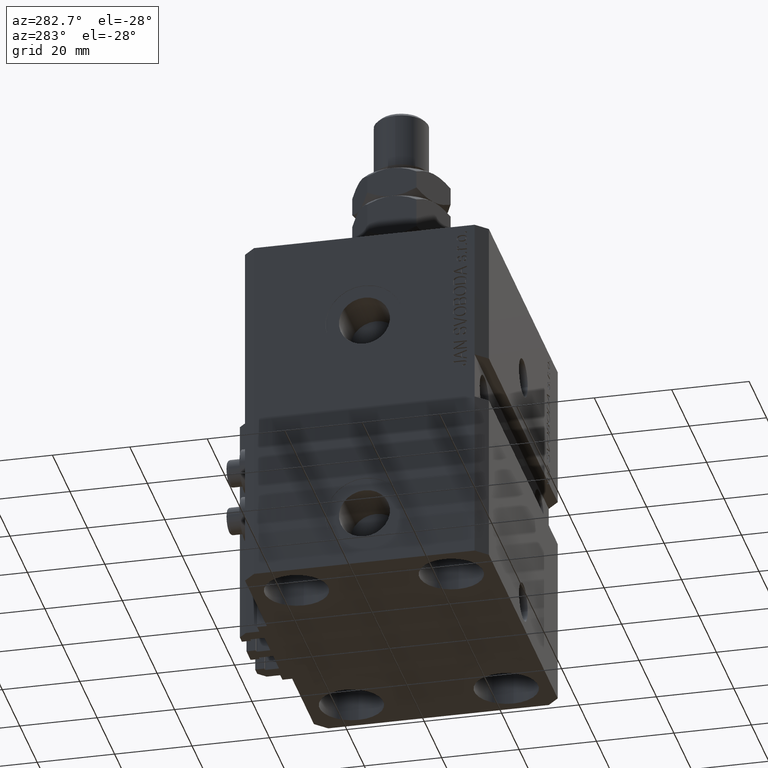
[diagram: clean part render]
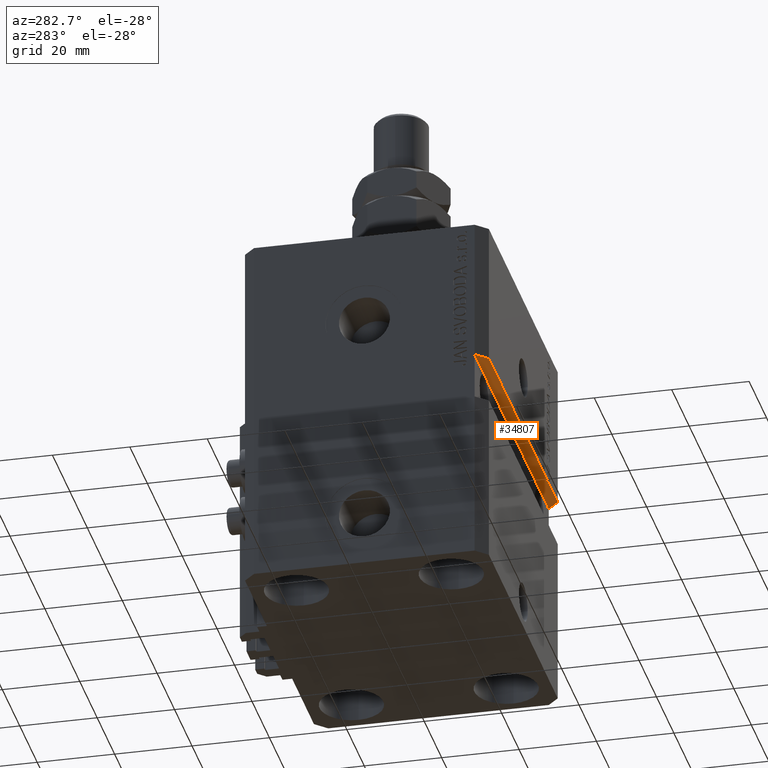
[diagram: same view with one face highlighted and labeled with its STEP entity id]
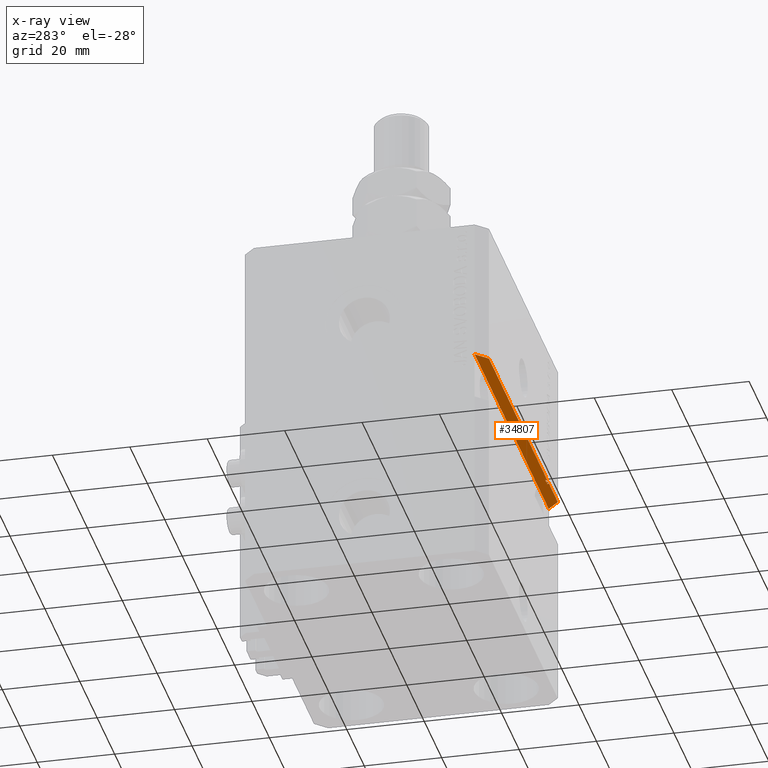
[diagram: x-ray of the same camera — body ghosted, the highlighted face saturated]
A machine part, auxiliary view. The second image highlights one B-rep face of the part: STEP entity #34807.
The next image is the same camera in x-ray: the body ghosted, the highlighted face saturated — about 0% of this face is hidden behind the body in this view.
In plain terms, the highlighted planar face has unit normal (-0, -0, 1).
Its self-contained STEP definition (entity closure, byte-faithful):
#112 = PLANE ( 'NONE',  #4708 ) ;
#556 = VERTEX_POINT ( 'NONE', #26453 ) ;
#1033 = VECTOR ( 'NONE', #14718, 1000.000000000000000 ) ;
#1068 = DIRECTION ( 'NONE',  ( -1.000000000000000000, -1.632680918566406300E-16, -2.449021377849609204E-16 ) ) ;
#1374 = LINE ( 'NONE', #27439, #4249 ) ;
#1460 = DIRECTION ( 'NONE',  ( 2.352167425053553784E-16, -1.000000000000000000, 2.880254154118782896E-32 ) ) ;
#1575 = CARTESIAN_POINT ( 'NONE',  ( 42.50000000000001421, -31.49999999999999289, -36.99999999999998579 ) ) ;
#2189 = EDGE_CURVE ( 'NONE', #21543, #6553, #3493, .T. ) ;
#2355 = VERTEX_POINT ( 'NONE', #12916 ) ;
#2379 = VECTOR ( 'NONE', #33286, 1000.000000000000000 ) ;
#2531 = ORIENTED_EDGE ( 'NONE', *, *, #33521, .T. ) ;
#3493 = LINE ( 'NONE', #26085, #25621 ) ;
#3673 = LINE ( 'NONE', #40955, #9484 ) ;
#3939 = VERTEX_POINT ( 'NONE', #30608 ) ;
#4249 = VECTOR ( 'NONE', #31900, 1000.000000000000000 ) ;
#4474 = EDGE_CURVE ( 'NONE', #16169, #21145, #41748, .T. ) ;
#4530 = VECTOR ( 'NONE', #30568, 1000.000000000000000 ) ;
#4708 = AXIS2_PLACEMENT_3D ( 'NONE', #15273, #12009, #27154 ) ;
#5849 = VECTOR ( 'NONE', #42617, 1000.000000000000000 ) ;
#6313 = ORIENTED_EDGE ( 'NONE', *, *, #35158, .T. ) ;
#6347 = VERTEX_POINT ( 'NONE', #46614 ) ;
#6553 = VERTEX_POINT ( 'NONE', #46299 ) ;
#7005 = CARTESIAN_POINT ( 'NONE',  ( 42.50000000000001421, -31.49999999999999289, -36.99999999999998579 ) ) ;
#9383 = LINE ( 'NONE', #39705, #40885 ) ;
#9484 = VECTOR ( 'NONE', #14863, 1000.000000000000000 ) ;
#10432 = CARTESIAN_POINT ( 'NONE',  ( 27.36912325285898717, -31.49999999999999289, -36.99999999999999289 ) ) ;
#11773 = VERTEX_POINT ( 'NONE', #30500 ) ;
#11803 = ORIENTED_EDGE ( 'NONE', *, *, #17994, .T. ) ;
#12009 = DIRECTION ( 'NONE',  ( -2.449021377849609204E-16, -2.880254154118838729E-32, 1.000000000000000000 ) ) ;
#12483 = EDGE_CURVE ( 'NONE', #2355, #11773, #27337, .T. ) ;
#12647 = CARTESIAN_POINT ( 'NONE',  ( 29.45454545454545681, -31.49999999999999289, -36.99999999999998579 ) ) ;
#12916 = CARTESIAN_POINT ( 'NONE',  ( 28.43744795748418142, -31.49999999999999289, -36.99999999999998579 ) ) ;
#13853 = LINE ( 'NONE', #39940, #22152 ) ;
#14718 = DIRECTION ( 'NONE',  ( -1.000000000000000000, -1.632680918566406300E-16, -2.449021377849609204E-16 ) ) ;
#14863 = DIRECTION ( 'NONE',  ( -1.000000000000000000, 0.000000000000000000, -2.449021377849609204E-16 ) ) ;
#15168 = DIRECTION ( 'NONE',  ( -2.352167425053553784E-16, 1.000000000000000000, -2.880254154118782896E-32 ) ) ;
#15177 = ORIENTED_EDGE ( 'NONE', *, *, #18009, .T. ) ;
#15237 = EDGE_CURVE ( 'NONE', #30104, #21543, #43385, .T. ) ;
#15273 = CARTESIAN_POINT ( 'NONE',  ( 42.50000000000001421, -28.49999999999999289, -36.99999999999998579 ) ) ;
#16169 = VERTEX_POINT ( 'NONE', #45043 ) ;
#17994 = EDGE_CURVE ( 'NONE', #6553, #3939, #1374, .T. ) ;
#18009 = EDGE_CURVE ( 'NONE', #11773, #6347, #27930, .T. ) ;
#18129 = CARTESIAN_POINT ( 'NONE',  ( 39.50000000000000000, -31.50000000000000711, -36.99999999999998579 ) ) ;
#18168 = DIRECTION ( 'NONE',  ( -1.000000000000000000, -1.632680918566406300E-16, -2.449021377849609204E-16 ) ) ;
#18842 = LINE ( 'NONE', #18129, #20562 ) ;
#19708 = FACE_OUTER_BOUND ( 'NONE', #41191, .T. ) ;
#19741 = CARTESIAN_POINT ( 'NONE',  ( 8.943770726790874836E-15, -30.99999999999999289, -36.99999999999999289 ) ) ;
#20562 = VECTOR ( 'NONE', #49189, 1000.000000000000000 ) ;
#20803 = DIRECTION ( 'NONE',  ( -0.7071067811865471286, 0.7071067811865479058, -1.731719623548279770E-16 ) ) ;
#21108 = VERTEX_POINT ( 'NONE', #10432 ) ;
#21128 = LINE ( 'NONE', #36287, #2379 ) ;
#21145 = VERTEX_POINT ( 'NONE', #38984 ) ;
#21394 = ORIENTED_EDGE ( 'NONE', *, *, #24992, .T. ) ;
#21543 = VERTEX_POINT ( 'NONE', #12647 ) ;
#21633 = ORIENTED_EDGE ( 'NONE', *, *, #4474, .F. ) ;
#22152 = VECTOR ( 'NONE', #1460, 1000.000000000000000 ) ;
#22368 = CARTESIAN_POINT ( 'NONE',  ( 42.50000000000001421, -28.49999999999999289, -36.99999999999998579 ) ) ;
#22657 = ORIENTED_EDGE ( 'NONE', *, *, #12483, .T. ) ;
#23118 = CARTESIAN_POINT ( 'NONE',  ( 28.43744795748430576, -30.99999999999999289, -36.99999999999999289 ) ) ;
#24219 = EDGE_CURVE ( 'NONE', #21108, #556, #42311, .T. ) ;
#24992 = EDGE_CURVE ( 'NONE', #556, #21145, #9383, .T. ) ;
#25621 = VECTOR ( 'NONE', #15168, 1000.000000000000000 ) ;
#26085 = CARTESIAN_POINT ( 'NONE',  ( 29.45454545454545681, -30.99999999999999289, -36.99999999999998579 ) ) ;
#26453 = CARTESIAN_POINT ( 'NONE',  ( -39.50000000000000000, -31.50000000000000711, -37.00000000000000711 ) ) ;
#27154 = DIRECTION ( 'NONE',  ( 1.000000000000000000, 0.000000000000000000, 2.449021377849609204E-16 ) ) ;
#27297 = ORIENTED_EDGE ( 'NONE', *, *, #33336, .T. ) ;
#27337 = LINE ( 'NONE', #23118, #4530 ) ;
#27439 = CARTESIAN_POINT ( 'NONE',  ( 8.943770726790874836E-15, -30.99999999999999289, -36.99999999999999289 ) ) ;
#27930 = LINE ( 'NONE', #19741, #5849 ) ;
#30104 = VERTEX_POINT ( 'NONE', #43148 ) ;
#30500 = CARTESIAN_POINT ( 'NONE',  ( 28.43744795748430576, -30.99999999999999289, -36.99999999999999289 ) ) ;
#30568 = DIRECTION ( 'NONE',  ( -2.352167425053552798E-16, 1.000000000000000000, -2.880254154118780159E-32 ) ) ;
#30608 = CARTESIAN_POINT ( 'NONE',  ( 29.04545454545454319, -30.99999999999999289, -36.99999999999998579 ) ) ;
#31900 = DIRECTION ( 'NONE',  ( -1.000000000000000000, 0.000000000000000000, -2.449021377849609204E-16 ) ) ;
#32661 = CARTESIAN_POINT ( 'NONE',  ( 29.04545454545454319, -31.49999999999999289, -36.99999999999999289 ) ) ;
#33286 = DIRECTION ( 'NONE',  ( 2.352167425053552305E-16, -1.000000000000000000, 2.880254154118779612E-32 ) ) ;
#33336 = EDGE_CURVE ( 'NONE', #16169, #30104, #18842, .T. ) ;
#33521 = EDGE_CURVE ( 'NONE', #3939, #45318, #13853, .T. ) ;
#34807 = ADVANCED_FACE ( 'NONE', ( #19708 ), #112, .F. ) ;
#35158 = EDGE_CURVE ( 'NONE', #6347, #21108, #21128, .T. ) ;
#36287 = CARTESIAN_POINT ( 'NONE',  ( 27.36912325285894809, -30.99999999999999289, -36.99999999999999289 ) ) ;
#37207 = ORIENTED_EDGE ( 'NONE', *, *, #24219, .T. ) ;
#38984 = CARTESIAN_POINT ( 'NONE',  ( -42.50000000000000000, -28.50000000000000711, -37.00000000000000711 ) ) ;
#39705 = CARTESIAN_POINT ( 'NONE',  ( -42.50000000000000711, -28.49999999999999289, -37.00000000000000711 ) ) ;
#39940 = CARTESIAN_POINT ( 'NONE',  ( 29.04545454545454319, -30.99999999999999289, -36.99999999999998579 ) ) ;
#40885 = VECTOR ( 'NONE', #20803, 1000.000000000000000 ) ;
#40955 = CARTESIAN_POINT ( 'NONE',  ( -39.50000000000002132, -31.50000000000000000, -37.00000000000000711 ) ) ;
#41191 = EDGE_LOOP ( 'NONE', ( #27297, #41324, #45500, #11803, #2531, #41261, #22657, #15177, #6313, #37207, #21394, #21633 ) ) ;
#41261 = ORIENTED_EDGE ( 'NONE', *, *, #47027, .T. ) ;
#41324 = ORIENTED_EDGE ( 'NONE', *, *, #15237, .T. ) ;
#41748 = LINE ( 'NONE', #22368, #45413 ) ;
#42311 = LINE ( 'NONE', #1575, #44837 ) ;
#42617 = DIRECTION ( 'NONE',  ( -1.000000000000000000, 0.000000000000000000, -2.449021377849609204E-16 ) ) ;
#43148 = CARTESIAN_POINT ( 'NONE',  ( 39.50000000000000711, -31.49999999999999289, -36.99999999999998579 ) ) ;
#43385 = LINE ( 'NONE', #7005, #1033 ) ;
#44837 = VECTOR ( 'NONE', #1068, 1000.000000000000000 ) ;
#45043 = CARTESIAN_POINT ( 'NONE',  ( 42.50000000000001421, -28.49999999999999289, -36.99999999999998579 ) ) ;
#45318 = VERTEX_POINT ( 'NONE', #32661 ) ;
#45413 = VECTOR ( 'NONE', #18168, 1000.000000000000000 ) ;
#45500 = ORIENTED_EDGE ( 'NONE', *, *, #2189, .T. ) ;
#46299 = CARTESIAN_POINT ( 'NONE',  ( 29.45454545454545681, -30.99999999999999289, -36.99999999999998579 ) ) ;
#46614 = CARTESIAN_POINT ( 'NONE',  ( 27.36912325285893033, -30.99999999999999289, -36.99999999999998579 ) ) ;
#47027 = EDGE_CURVE ( 'NONE', #45318, #2355, #3673, .T. ) ;
#49189 = DIRECTION ( 'NONE',  ( -0.7071067811865483499, -0.7071067811865466846, -1.731719623548283221E-16 ) ) ;